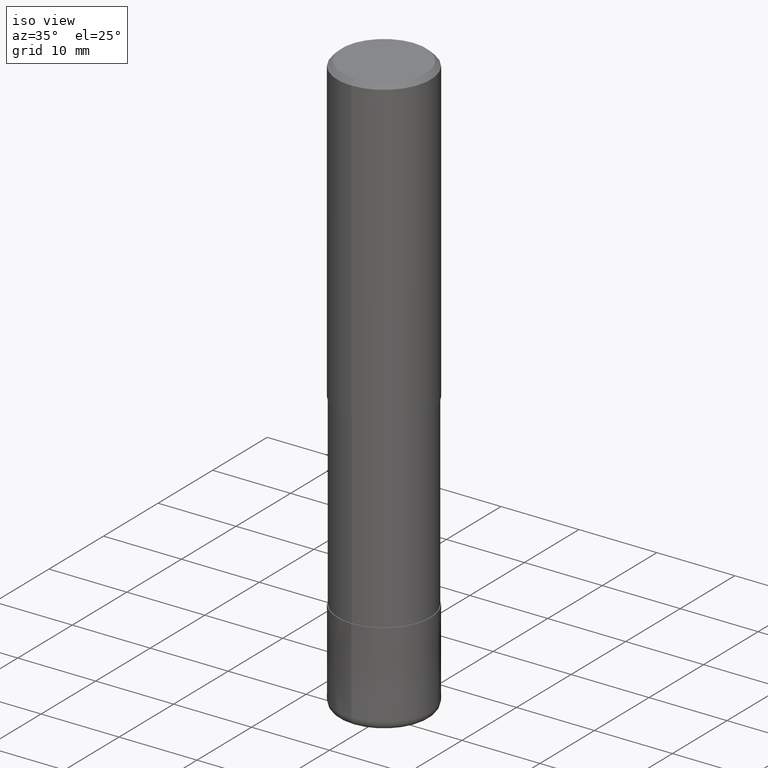
[diagram: clean part render]
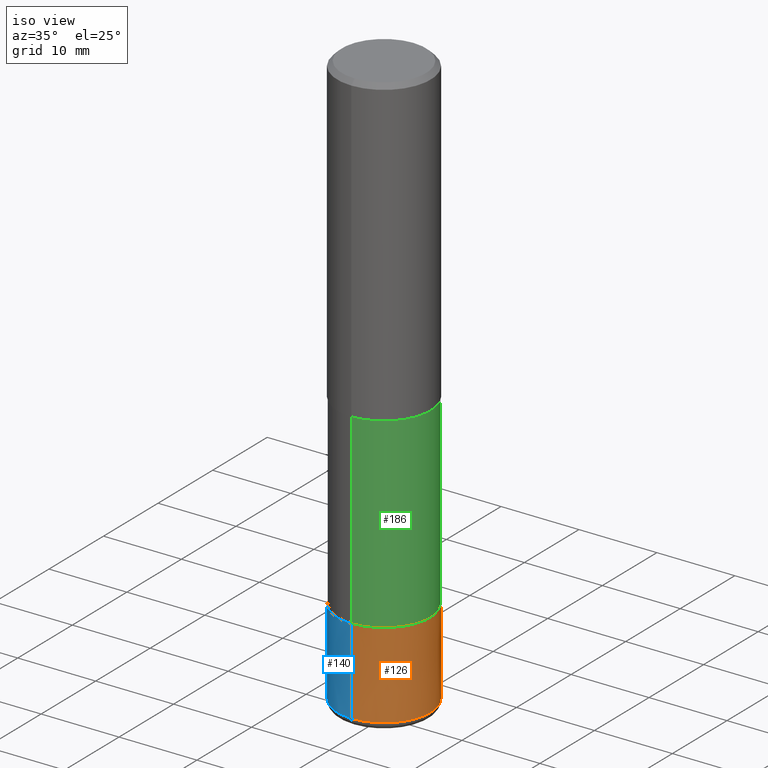
[diagram: same view with three faces highlighted in distinct colors, each labeled with its STEP entity id]
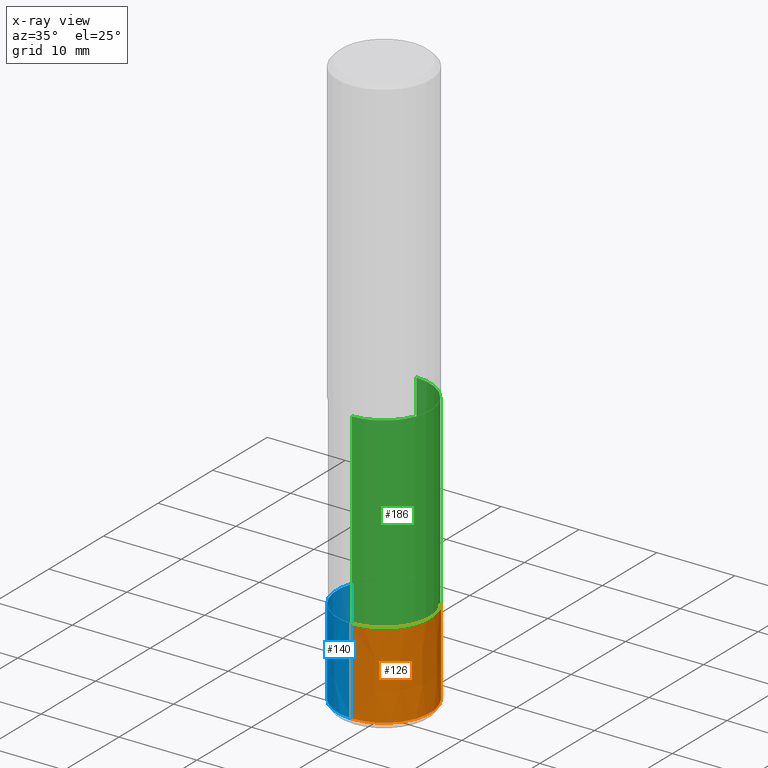
[diagram: x-ray of the same camera — body ghosted, the three highlighted faces saturated]
A machine part, iso view with three faces highlighted in distinct colors.
The next image is the same camera in x-ray (body ghosted, the three faces saturated) — at least one of them is partly hidden behind the body in this view.
Their STEP definitions:

[orange] entity #126 — the highlighted conical surface has half-angle 0.001 deg.
#92=EDGE_CURVE('',#118,#192,#229,.T.);
#118=VERTEX_POINT('',#259);
#122=VERTEX_POINT('',#263);
#126=ADVANCED_FACE('',(#267),#268,.T.);
#162=EDGE_CURVE('',#192,#182,#312,.T.);
#180=EDGE_CURVE('',#182,#122,#332,.T.);
#182=VERTEX_POINT('',#334);
#192=VERTEX_POINT('',#345);
#204=EDGE_CURVE('',#118,#122,#357,.T.);
#229=LINE('',#375,#376);
#259=CARTESIAN_POINT('',(0.0,5.9999,-63.0));
#263=CARTESIAN_POINT('',(7.34751566229888E-016,-5.9999,-63.0));
#267=FACE_OUTER_BOUND('',#419,.T.);
#268=CONICAL_SURFACE('',#420,5.99995,9.09090909063747E-006);
#312=CIRCLE('',#474,6.0);
#332=LINE('',#496,#497);
#334=CARTESIAN_POINT('',(7.34763812293426E-016,-6.0,-74.0));
#345=CARTESIAN_POINT('',(0.0,6.0,-74.0));
#357=CIRCLE('',#532,5.9999);
#375=CARTESIAN_POINT('',(-7.34757689261658E-016,5.99995,-68.5));
#376=VECTOR('',#540,1.0);
#419=EDGE_LOOP('',(#584,#585,#586,#587));
#420=AXIS2_PLACEMENT_3D('',#588,#589,#590);
#474=AXIS2_PLACEMENT_3D('',#662,#663,#664);
#496=CARTESIAN_POINT('',(7.34757689261657E-016,-5.99995,-68.5));
#497=VECTOR('',#686,1.0);
#532=AXIS2_PLACEMENT_3D('',#712,#713,#714);
#540=DIRECTION('',(-1.11327850342629E-021,9.09090909051225E-006,-0.999999999958678));
#584=ORIENTED_EDGE('',*,*,#92,.F.);
#585=ORIENTED_EDGE('',*,*,#204,.T.);
#586=ORIENTED_EDGE('',*,*,#180,.F.);
#587=ORIENTED_EDGE('',*,*,#162,.F.);
#588=CARTESIAN_POINT('',(0.0,0.0,-68.5));
#589=DIRECTION('',(0.0,-0.0,-1.0));
#590=DIRECTION('',(0.0,1.0,0.0));
#662=CARTESIAN_POINT('',(0.0,0.0,-74.0));
#663=DIRECTION('',(0.0,0.0,-1.0));
#664=DIRECTION('',(0.0,1.0,0.0));
#686=DIRECTION('',(-1.11327850342629E-021,9.09090909051225E-006,0.999999999958678));
#712=CARTESIAN_POINT('',(0.0,0.0,-63.0));
#713=DIRECTION('',(0.0,0.0,-1.0));
#714=DIRECTION('',(0.0,1.0,0.0));

[blue] entity #140 — the highlighted conical surface has half-angle 0.001 deg.
#92=EDGE_CURVE('',#118,#192,#229,.T.);
#118=VERTEX_POINT('',#259);
#122=VERTEX_POINT('',#263);
#132=EDGE_CURVE('',#122,#118,#275,.T.);
#140=ADVANCED_FACE('',(#284),#285,.T.);
#180=EDGE_CURVE('',#182,#122,#332,.T.);
#182=VERTEX_POINT('',#334);
#192=VERTEX_POINT('',#345);
#196=EDGE_CURVE('',#182,#192,#349,.T.);
#229=LINE('',#375,#376);
#259=CARTESIAN_POINT('',(0.0,5.9999,-63.0));
#263=CARTESIAN_POINT('',(7.34751566229888E-016,-5.9999,-63.0));
#275=CIRCLE('',#429,5.9999);
#284=FACE_OUTER_BOUND('',#440,.T.);
#285=CONICAL_SURFACE('',#441,5.99995,9.09090909063747E-006);
#332=LINE('',#496,#497);
#334=CARTESIAN_POINT('',(7.34763812293426E-016,-6.0,-74.0));
#345=CARTESIAN_POINT('',(0.0,6.0,-74.0));
#349=CIRCLE('',#519,6.0);
#375=CARTESIAN_POINT('',(-7.34757689261658E-016,5.99995,-68.5));
#376=VECTOR('',#540,1.0);
#429=AXIS2_PLACEMENT_3D('',#602,#603,#604);
#440=EDGE_LOOP('',(#620,#621,#622,#623));
#441=AXIS2_PLACEMENT_3D('',#624,#625,#626);
#496=CARTESIAN_POINT('',(7.34757689261657E-016,-5.99995,-68.5));
#497=VECTOR('',#686,1.0);
#519=AXIS2_PLACEMENT_3D('',#702,#703,#704);
#540=DIRECTION('',(-1.11327850342629E-021,9.09090909051225E-006,-0.999999999958678));
#602=CARTESIAN_POINT('',(0.0,0.0,-63.0));
#603=DIRECTION('',(0.0,0.0,-1.0));
#604=DIRECTION('',(0.0,1.0,0.0));
#620=ORIENTED_EDGE('',*,*,#92,.T.);
#621=ORIENTED_EDGE('',*,*,#196,.F.);
#622=ORIENTED_EDGE('',*,*,#180,.T.);
#623=ORIENTED_EDGE('',*,*,#132,.T.);
#624=CARTESIAN_POINT('',(0.0,0.0,-68.5));
#625=DIRECTION('',(0.0,-0.0,-1.0));
#626=DIRECTION('',(0.0,1.0,0.0));
#686=DIRECTION('',(-1.11327850342629E-021,9.09090909051225E-006,0.999999999958678));
#702=CARTESIAN_POINT('',(0.0,0.0,-74.0));
#703=DIRECTION('',(0.0,0.0,-1.0));
#704=DIRECTION('',(0.0,1.0,0.0));

[green] entity #186 — the highlighted cylindrical surface (partial cylindrical patch) has radius 5.91 mm, axis along (-0, -0, 1).
#96=EDGE_CURVE('',#168,#206,#234,.T.);
#154=EDGE_CURVE('',#178,#206,#303,.T.);
#168=VERTEX_POINT('',#319);
#172=VERTEX_POINT('',#324);
#178=VERTEX_POINT('',#330);
#186=ADVANCED_FACE('',(#338),#339,.T.);
#194=EDGE_CURVE('',#168,#172,#347,.T.);
#200=EDGE_CURVE('',#172,#178,#353,.T.);
#206=VERTEX_POINT('',#359);
#234=CIRCLE('',#382,5.90995);
#303=LINE('',#461,#462);
#319=CARTESIAN_POINT('',(0.0,5.90995,-39.0));
#324=CARTESIAN_POINT('',(0.0,5.90995,-63.0));
#330=CARTESIAN_POINT('',(7.23736232077256E-016,-5.90995,-63.0));
#338=FACE_OUTER_BOUND('',#503,.T.);
#339=CYLINDRICAL_SURFACE('',#504,5.90995);
#347=LINE('',#515,#516);
#353=CIRCLE('',#526,5.90995);
#359=CARTESIAN_POINT('',(7.23736232077256E-016,-5.90995,-39.0));
#382=AXIS2_PLACEMENT_3D('',#547,#548,#549);
#461=CARTESIAN_POINT('',(7.23736232077256E-016,-5.90995,-51.0));
#462=VECTOR('',#652,1.0);
#503=EDGE_LOOP('',(#688,#689,#690,#691));
#504=AXIS2_PLACEMENT_3D('',#692,#693,#694);
#515=CARTESIAN_POINT('',(-7.23736232077256E-016,5.90995,-51.0));
#516=VECTOR('',#701,1.0);
#526=AXIS2_PLACEMENT_3D('',#706,#707,#708);
#547=CARTESIAN_POINT('',(0.0,0.0,-39.0));
#548=DIRECTION('',(0.0,0.0,-1.0));
#549=DIRECTION('',(0.0,1.0,0.0));
#652=DIRECTION('',(-0.0,-0.0,1.0));
#688=ORIENTED_EDGE('',*,*,#194,.F.);
#689=ORIENTED_EDGE('',*,*,#96,.T.);
#690=ORIENTED_EDGE('',*,*,#154,.F.);
#691=ORIENTED_EDGE('',*,*,#200,.F.);
#692=CARTESIAN_POINT('',(0.0,0.0,-51.0));
#693=DIRECTION('',(-0.0,-0.0,1.0));
#694=DIRECTION('',(0.0,1.0,0.0));
#701=DIRECTION('',(0.0,0.0,-1.0));
#706=CARTESIAN_POINT('',(0.0,0.0,-63.0));
#707=DIRECTION('',(0.0,0.0,-1.0));
#708=DIRECTION('',(0.0,1.0,0.0));